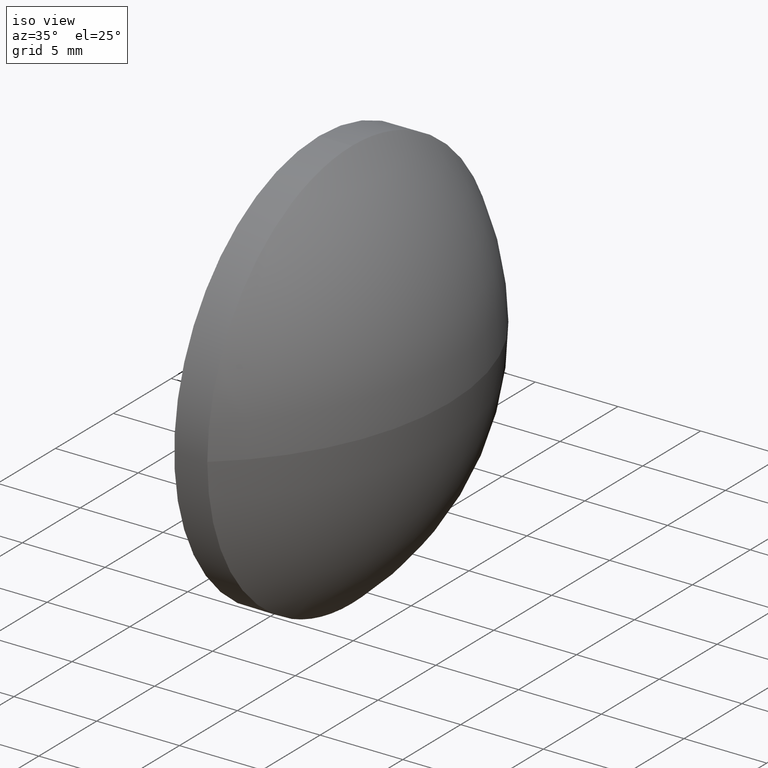
[diagram: clean part render]
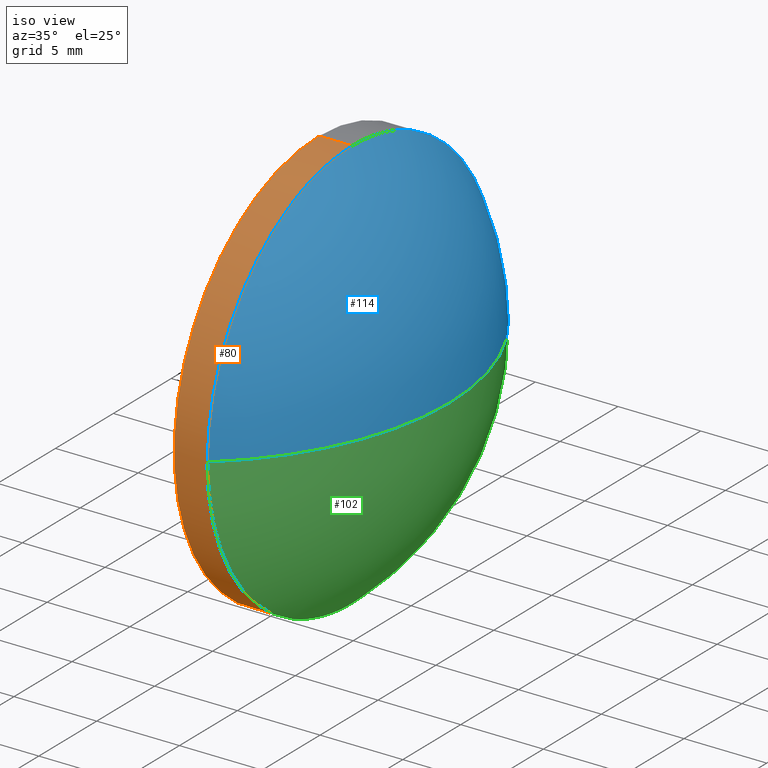
[diagram: same view with three faces highlighted in distinct colors, each labeled with its STEP entity id]
A machine part, iso view with three faces highlighted in distinct colors.
Their STEP definitions:

[orange] entity #80 — the highlighted cylindrical surface (partial cylindrical patch) has radius 12.5 mm, axis along (-1, -0, -0).
#4 = CARTESIAN_POINT ( 'NONE',  ( 543.1151502343923300, 132.5985296569771200, -12.49999999999998400 ) ) ;
#5 = CIRCLE ( 'NONE', #97, 12.49999999999998400 ) ;
#8 = CARTESIAN_POINT ( 'NONE',  ( 543.1151502343923300, 132.5985296569771200, 12.49999999999998400 ) ) ;
#10 = EDGE_CURVE ( 'NONE', #53, #12, #121, .T. ) ;
#12 = VERTEX_POINT ( 'NONE', #152 ) ;
#16 = AXIS2_PLACEMENT_3D ( 'NONE', #23, #170, #40 ) ;
#17 = VERTEX_POINT ( 'NONE', #177 ) ;
#22 = DIRECTION ( 'NONE',  ( -1.000000000000000000, -0.0000000000000000000, -0.0000000000000000000 ) ) ;
#23 = CARTESIAN_POINT ( 'NONE',  ( 539.6031189925024600, 132.5985296569771200, 0.0000000000000000000 ) ) ;
#24 = AXIS2_PLACEMENT_3D ( 'NONE', #56, #106, #73 ) ;
#32 = EDGE_CURVE ( 'NONE', #53, #17, #98, .T. ) ;
#33 = CYLINDRICAL_SURFACE ( 'NONE', #16, 12.49999999999998400 ) ;
#38 = CARTESIAN_POINT ( 'NONE',  ( 541.1151502343923300, 132.5985296569771200, 12.49999999999998400 ) ) ;
#40 = DIRECTION ( 'NONE',  ( 0.0000000000000000000, 0.0000000000000000000, 1.000000000000000000 ) ) ;
#45 = DIRECTION ( 'NONE',  ( 0.0000000000000000000, 0.0000000000000000000, 1.000000000000000000 ) ) ;
#51 = DIRECTION ( 'NONE',  ( 0.0000000000000000000, 0.0000000000000000000, 1.000000000000000000 ) ) ;
#53 = VERTEX_POINT ( 'NONE', #4 ) ;
#56 = CARTESIAN_POINT ( 'NONE',  ( 541.1151502343923300, 132.5985296569771200, 0.0000000000000000000 ) ) ;
#61 = ORIENTED_EDGE ( 'NONE', *, *, #77, .F. ) ;
#70 = VECTOR ( 'NONE', #132, 1000.000000000000000 ) ;
#73 = DIRECTION ( 'NONE',  ( 0.0000000000000000000, 0.0000000000000000000, 1.000000000000000000 ) ) ;
#77 = EDGE_CURVE ( 'NONE', #12, #153, #127, .T. ) ;
#78 = ORIENTED_EDGE ( 'NONE', *, *, #10, .F. ) ;
#80 = ADVANCED_FACE ( 'NONE', ( #155 ), #33, .T. ) ;
#84 = CARTESIAN_POINT ( 'NONE',  ( 539.6031189925024600, 132.5985296569771200, -12.49999999999998400 ) ) ;
#90 = ORIENTED_EDGE ( 'NONE', *, *, #133, .T. ) ;
#92 = CARTESIAN_POINT ( 'NONE',  ( 539.6031189925024600, 132.5985296569771200, 12.49999999999998400 ) ) ;
#97 = AXIS2_PLACEMENT_3D ( 'NONE', #157, #22, #51 ) ;
#98 = CIRCLE ( 'NONE', #99, 12.49999999999998400 ) ;
#99 = AXIS2_PLACEMENT_3D ( 'NONE', #154, #180, #45 ) ;
#101 = VECTOR ( 'NONE', #103, 1000.000000000000000 ) ;
#103 = DIRECTION ( 'NONE',  ( -1.000000000000000000, -0.0000000000000000000, -0.0000000000000000000 ) ) ;
#106 = DIRECTION ( 'NONE',  ( -1.000000000000000000, -0.0000000000000000000, -0.0000000000000000000 ) ) ;
#116 = LINE ( 'NONE', #92, #70 ) ;
#121 = LINE ( 'NONE', #84, #101 ) ;
#127 = CIRCLE ( 'NONE', #24, 12.49999999999998400 ) ;
#131 = EDGE_LOOP ( 'NONE', ( #78, #186, #90, #182, #61 ) ) ;
#132 = DIRECTION ( 'NONE',  ( -1.000000000000000000, -0.0000000000000000000, -0.0000000000000000000 ) ) ;
#133 = EDGE_CURVE ( 'NONE', #17, #135, #5, .T. ) ;
#135 = VERTEX_POINT ( 'NONE', #8 ) ;
#142 = EDGE_CURVE ( 'NONE', #135, #153, #116, .T. ) ;
#152 = CARTESIAN_POINT ( 'NONE',  ( 541.1151502343923300, 132.5985296569771200, -12.49999999999998400 ) ) ;
#153 = VERTEX_POINT ( 'NONE', #38 ) ;
#154 = CARTESIAN_POINT ( 'NONE',  ( 543.1151502343923300, 132.5985296569771200, 0.0000000000000000000 ) ) ;
#155 = FACE_OUTER_BOUND ( 'NONE', #131, .T. ) ;
#157 = CARTESIAN_POINT ( 'NONE',  ( 543.1151502343923300, 132.5985296569771200, 0.0000000000000000000 ) ) ;
#170 = DIRECTION ( 'NONE',  ( -1.000000000000000000, -0.0000000000000000000, -0.0000000000000000000 ) ) ;
#177 = CARTESIAN_POINT ( 'NONE',  ( 543.1151502343923300, 120.0985296569771200, -1.530808498934188800E-015 ) ) ;
#180 = DIRECTION ( 'NONE',  ( -1.000000000000000000, -0.0000000000000000000, -0.0000000000000000000 ) ) ;
#182 = ORIENTED_EDGE ( 'NONE', *, *, #142, .T. ) ;
#186 = ORIENTED_EDGE ( 'NONE', *, *, #32, .T. ) ;

[blue] entity #114 — the highlighted spherical surface has radius 16.2619 mm.
#2 = CIRCLE ( 'NONE', #55, 16.26191126279863400 ) ;
#5 = CIRCLE ( 'NONE', #97, 12.49999999999998400 ) ;
#6 = ORIENTED_EDGE ( 'NONE', *, *, #133, .F. ) ;
#8 = CARTESIAN_POINT ( 'NONE',  ( 543.1151502343923300, 132.5985296569771200, 12.49999999999998400 ) ) ;
#17 = VERTEX_POINT ( 'NONE', #177 ) ;
#19 = CARTESIAN_POINT ( 'NONE',  ( 532.7132389715936800, 132.5985296569770900, 0.0000000000000000000 ) ) ;
#20 = FACE_OUTER_BOUND ( 'NONE', #117, .T. ) ;
#22 = DIRECTION ( 'NONE',  ( -1.000000000000000000, -0.0000000000000000000, -0.0000000000000000000 ) ) ;
#29 = AXIS2_PLACEMENT_3D ( 'NONE', #19, #91, #54 ) ;
#30 = ORIENTED_EDGE ( 'NONE', *, *, #86, .T. ) ;
#36 = AXIS2_PLACEMENT_3D ( 'NONE', #163, #113, #130 ) ;
#41 = ORIENTED_EDGE ( 'NONE', *, *, #63, .F. ) ;
#42 = DIRECTION ( 'NONE',  ( 0.0000000000000000000, 1.224646799147353200E-016, -1.000000000000000000 ) ) ;
#44 = VERTEX_POINT ( 'NONE', #46 ) ;
#46 = CARTESIAN_POINT ( 'NONE',  ( 548.9751502343923400, 132.5985296569770900, 0.0000000000000000000 ) ) ;
#48 = CIRCLE ( 'NONE', #108, 16.26191126279863400 ) ;
#51 = DIRECTION ( 'NONE',  ( 0.0000000000000000000, 0.0000000000000000000, 1.000000000000000000 ) ) ;
#54 = DIRECTION ( 'NONE',  ( 0.0000000000000000000, 1.000000000000000000, 0.0000000000000000000 ) ) ;
#55 = AXIS2_PLACEMENT_3D ( 'NONE', #119, #120, #165 ) ;
#63 = EDGE_CURVE ( 'NONE', #135, #123, #125, .T. ) ;
#86 = EDGE_CURVE ( 'NONE', #44, #123, #2, .T. ) ;
#87 = DIRECTION ( 'NONE',  ( 0.0000000000000000000, 1.000000000000000000, 1.224646799147354200E-016 ) ) ;
#91 = DIRECTION ( 'NONE',  ( -0.0000000000000000000, 0.0000000000000000000, -1.000000000000000000 ) ) ;
#97 = AXIS2_PLACEMENT_3D ( 'NONE', #157, #22, #51 ) ;
#108 = AXIS2_PLACEMENT_3D ( 'NONE', #156, #42, #87 ) ;
#113 = DIRECTION ( 'NONE',  ( -1.000000000000000000, -0.0000000000000000000, -0.0000000000000000000 ) ) ;
#114 = ADVANCED_FACE ( 'NONE', ( #20 ), #173, .T. ) ;
#117 = EDGE_LOOP ( 'NONE', ( #162, #30, #41, #6 ) ) ;
#119 = CARTESIAN_POINT ( 'NONE',  ( 532.7132389715936800, 132.5985296569770900, 0.0000000000000000000 ) ) ;
#120 = DIRECTION ( 'NONE',  ( -0.0000000000000000000, 0.0000000000000000000, 1.000000000000000000 ) ) ;
#123 = VERTEX_POINT ( 'NONE', #158 ) ;
#125 = CIRCLE ( 'NONE', #36, 12.49999999999998400 ) ;
#130 = DIRECTION ( 'NONE',  ( 0.0000000000000000000, 0.0000000000000000000, 1.000000000000000000 ) ) ;
#133 = EDGE_CURVE ( 'NONE', #17, #135, #5, .T. ) ;
#135 = VERTEX_POINT ( 'NONE', #8 ) ;
#156 = CARTESIAN_POINT ( 'NONE',  ( 532.7132389715936800, 132.5985296569770900, 0.0000000000000000000 ) ) ;
#157 = CARTESIAN_POINT ( 'NONE',  ( 543.1151502343923300, 132.5985296569771200, 0.0000000000000000000 ) ) ;
#158 = CARTESIAN_POINT ( 'NONE',  ( 543.1151502343923300, 145.0985296569771200, 0.0000000000000000000 ) ) ;
#162 = ORIENTED_EDGE ( 'NONE', *, *, #166, .F. ) ;
#163 = CARTESIAN_POINT ( 'NONE',  ( 543.1151502343923300, 132.5985296569771200, 0.0000000000000000000 ) ) ;
#165 = DIRECTION ( 'NONE',  ( 1.000000000000000000, 0.0000000000000000000, 0.0000000000000000000 ) ) ;
#166 = EDGE_CURVE ( 'NONE', #44, #17, #48, .T. ) ;
#173 = SPHERICAL_SURFACE ( 'NONE', #29, 16.26191126279864800 ) ;
#177 = CARTESIAN_POINT ( 'NONE',  ( 543.1151502343923300, 120.0985296569771200, -1.530808498934188800E-015 ) ) ;

[green] entity #102 — the highlighted spherical surface has radius 16.2619 mm.
#1 = AXIS2_PLACEMENT_3D ( 'NONE', #143, #88, #104 ) ;
#2 = CIRCLE ( 'NONE', #55, 16.26191126279863400 ) ;
#4 = CARTESIAN_POINT ( 'NONE',  ( 543.1151502343923300, 132.5985296569771200, -12.49999999999998400 ) ) ;
#9 = ORIENTED_EDGE ( 'NONE', *, *, #86, .F. ) ;
#17 = VERTEX_POINT ( 'NONE', #177 ) ;
#18 = FACE_OUTER_BOUND ( 'NONE', #58, .T. ) ;
#32 = EDGE_CURVE ( 'NONE', #53, #17, #98, .T. ) ;
#42 = DIRECTION ( 'NONE',  ( 0.0000000000000000000, 1.224646799147353200E-016, -1.000000000000000000 ) ) ;
#44 = VERTEX_POINT ( 'NONE', #46 ) ;
#45 = DIRECTION ( 'NONE',  ( 0.0000000000000000000, 0.0000000000000000000, 1.000000000000000000 ) ) ;
#46 = CARTESIAN_POINT ( 'NONE',  ( 548.9751502343923400, 132.5985296569770900, 0.0000000000000000000 ) ) ;
#48 = CIRCLE ( 'NONE', #108, 16.26191126279863400 ) ;
#49 = ORIENTED_EDGE ( 'NONE', *, *, #176, .F. ) ;
#53 = VERTEX_POINT ( 'NONE', #4 ) ;
#55 = AXIS2_PLACEMENT_3D ( 'NONE', #119, #120, #165 ) ;
#57 = CIRCLE ( 'NONE', #112, 12.49999999999998400 ) ;
#58 = EDGE_LOOP ( 'NONE', ( #9, #140, #128, #49 ) ) ;
#86 = EDGE_CURVE ( 'NONE', #44, #123, #2, .T. ) ;
#87 = DIRECTION ( 'NONE',  ( 0.0000000000000000000, 1.000000000000000000, 1.224646799147354200E-016 ) ) ;
#88 = DIRECTION ( 'NONE',  ( -0.0000000000000000000, 0.0000000000000000000, -1.000000000000000000 ) ) ;
#98 = CIRCLE ( 'NONE', #99, 12.49999999999998400 ) ;
#99 = AXIS2_PLACEMENT_3D ( 'NONE', #154, #180, #45 ) ;
#102 = ADVANCED_FACE ( 'NONE', ( #18 ), #184, .T. ) ;
#104 = DIRECTION ( 'NONE',  ( 0.0000000000000000000, 1.000000000000000000, 0.0000000000000000000 ) ) ;
#107 = DIRECTION ( 'NONE',  ( 0.0000000000000000000, 0.0000000000000000000, 1.000000000000000000 ) ) ;
#108 = AXIS2_PLACEMENT_3D ( 'NONE', #156, #42, #87 ) ;
#112 = AXIS2_PLACEMENT_3D ( 'NONE', #183, #122, #107 ) ;
#119 = CARTESIAN_POINT ( 'NONE',  ( 532.7132389715936800, 132.5985296569770900, 0.0000000000000000000 ) ) ;
#120 = DIRECTION ( 'NONE',  ( -0.0000000000000000000, 0.0000000000000000000, 1.000000000000000000 ) ) ;
#122 = DIRECTION ( 'NONE',  ( -1.000000000000000000, -0.0000000000000000000, -0.0000000000000000000 ) ) ;
#123 = VERTEX_POINT ( 'NONE', #158 ) ;
#128 = ORIENTED_EDGE ( 'NONE', *, *, #32, .F. ) ;
#140 = ORIENTED_EDGE ( 'NONE', *, *, #166, .T. ) ;
#143 = CARTESIAN_POINT ( 'NONE',  ( 532.7132389715936800, 132.5985296569770900, 0.0000000000000000000 ) ) ;
#154 = CARTESIAN_POINT ( 'NONE',  ( 543.1151502343923300, 132.5985296569771200, 0.0000000000000000000 ) ) ;
#156 = CARTESIAN_POINT ( 'NONE',  ( 532.7132389715936800, 132.5985296569770900, 0.0000000000000000000 ) ) ;
#158 = CARTESIAN_POINT ( 'NONE',  ( 543.1151502343923300, 145.0985296569771200, 0.0000000000000000000 ) ) ;
#165 = DIRECTION ( 'NONE',  ( 1.000000000000000000, 0.0000000000000000000, 0.0000000000000000000 ) ) ;
#166 = EDGE_CURVE ( 'NONE', #44, #17, #48, .T. ) ;
#176 = EDGE_CURVE ( 'NONE', #123, #53, #57, .T. ) ;
#177 = CARTESIAN_POINT ( 'NONE',  ( 543.1151502343923300, 120.0985296569771200, -1.530808498934188800E-015 ) ) ;
#180 = DIRECTION ( 'NONE',  ( -1.000000000000000000, -0.0000000000000000000, -0.0000000000000000000 ) ) ;
#183 = CARTESIAN_POINT ( 'NONE',  ( 543.1151502343923300, 132.5985296569771200, 0.0000000000000000000 ) ) ;
#184 = SPHERICAL_SURFACE ( 'NONE', #1, 16.26191126279864800 ) ;